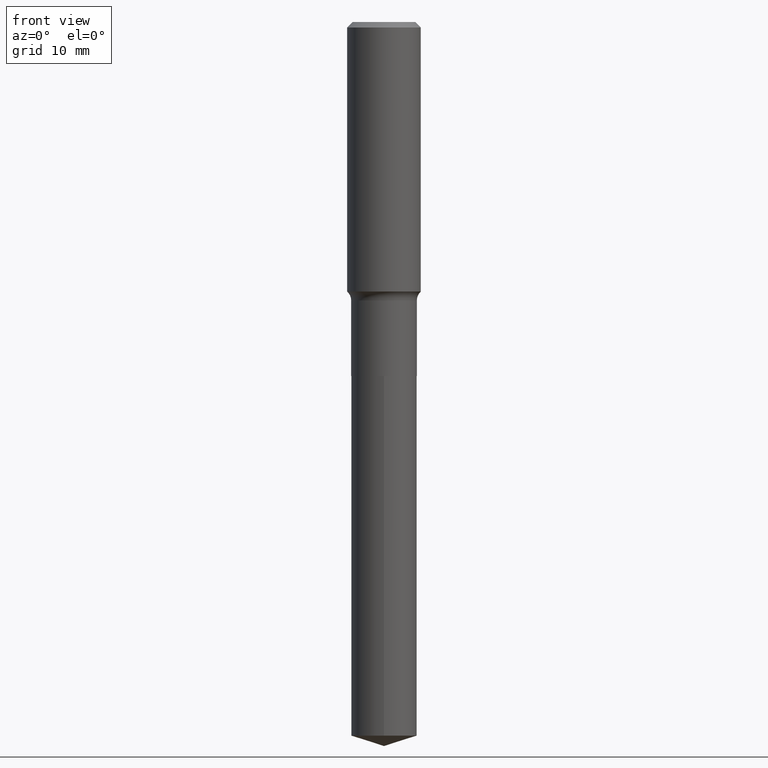
[diagram: clean part render]
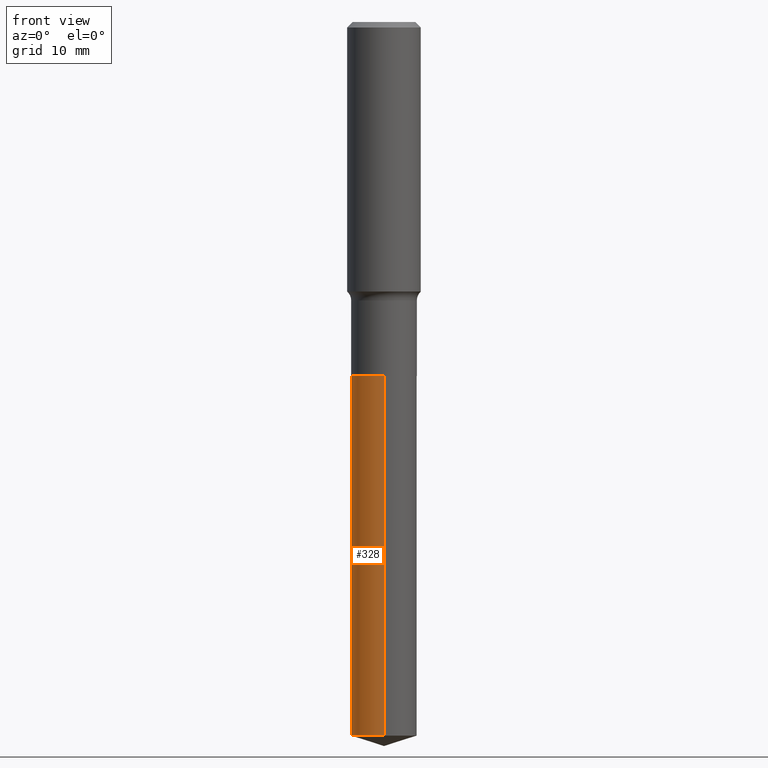
[diagram: same view with one face highlighted and labeled with its STEP entity id]
A machine part, front view. The second image highlights one B-rep face of the part: STEP entity #328.
In plain terms, the highlighted cylindrical surface (edge-blend (fillet) strip) has radius 5.3505 mm, axis along (-0, 0, 1).
Its self-contained STEP definition (entity closure, byte-faithful):
#15 = CARTESIAN_POINT ( 'NONE',  ( 1.496758272878763482E-15, 0.2106499999999920936, -2.271700000000000053 ) ) ;
#39 = ORIENTED_EDGE ( 'NONE', *, *, #441, .F. ) ;
#40 = DIRECTION ( 'NONE',  ( -6.982962677686265922E-15, -1.000000000000000000, 3.890597664843479129E-15 ) ) ;
#47 = LINE ( 'NONE', #230, #479 ) ;
#48 = CARTESIAN_POINT ( 'NONE',  ( -1.470961088054556343E-15, -0.2106500000000079420, -2.271699999999998720 ) ) ;
#52 = AXIS2_PLACEMENT_3D ( 'NONE', #446, #383, #40 ) ;
#53 = DIRECTION ( 'NONE',  ( -2.445499716987026041E-29, 3.491437072815506423E-15, 1.000000000000000000 ) ) ;
#56 = ORIENTED_EDGE ( 'NONE', *, *, #385, .T. ) ;
#106 = DIRECTION ( 'NONE',  ( -6.982962677686265922E-15, -1.000000000000000000, 2.593731776562319814E-15 ) ) ;
#122 = LINE ( 'NONE', #240, #138 ) ;
#129 = ORIENTED_EDGE ( 'NONE', *, *, #223, .T. ) ;
#131 = VERTEX_POINT ( 'NONE', #357 ) ;
#135 = AXIS2_PLACEMENT_3D ( 'NONE', #251, #147, #106 ) ;
#138 = VECTOR ( 'NONE', #154, 39.37007874015748143 ) ;
#143 = CIRCLE ( 'NONE', #135, 0.2106500000000000039 ) ;
#147 = DIRECTION ( 'NONE',  ( -2.445499716987026041E-29, 3.491437072815506423E-15, 1.000000000000000000 ) ) ;
#154 = DIRECTION ( 'NONE',  ( -2.445499716987026041E-29, 3.491437072815506423E-15, 1.000000000000000000 ) ) ;
#160 = ORIENTED_EDGE ( 'NONE', *, *, #185, .F. ) ;
#163 = CARTESIAN_POINT ( 'NONE',  ( 1.496758272878762693E-15, 0.2106499999999839612, -4.579282310122643196 ) ) ;
#185 = EDGE_CURVE ( 'NONE', #487, #485, #409, .T. ) ;
#193 = AXIS2_PLACEMENT_3D ( 'NONE', #339, #416, #263 ) ;
#223 = EDGE_CURVE ( 'NONE', #131, #485, #122, .T. ) ;
#230 = CARTESIAN_POINT ( 'NONE',  ( 1.496758272878706487E-15, 0.2106499999999920936, -2.271700000000000053 ) ) ;
#240 = CARTESIAN_POINT ( 'NONE',  ( -1.470961088054556343E-15, -0.2106500000000079420, -2.271699999999998720 ) ) ;
#251 = CARTESIAN_POINT ( 'NONE',  ( 1.119856337333996399E-28, -1.598837658358541571E-14, -4.579282310122642308 ) ) ;
#263 = DIRECTION ( 'NONE',  ( -6.982962677686265922E-15, -1.000000000000000000, 3.890597664843479129E-15 ) ) ;
#308 = EDGE_LOOP ( 'NONE', ( #39, #56, #129, #160 ) ) ;
#328 = ADVANCED_FACE ( 'NONE', ( #337 ), #333, .T. ) ;
#333 = CYLINDRICAL_SURFACE ( 'NONE', #52, 0.2106500000000000039 ) ;
#337 = FACE_OUTER_BOUND ( 'NONE', #308, .T. ) ;
#339 = CARTESIAN_POINT ( 'NONE',  ( 5.555371487010773044E-29, -7.931598157449970914E-15, -2.271699999999999608 ) ) ;
#357 = CARTESIAN_POINT ( 'NONE',  ( -1.470961088054499348E-15, -0.2106500000000159634, -4.579282310122641420 ) ) ;
#383 = DIRECTION ( 'NONE',  ( -2.445499716987026041E-29, 3.491437072815506423E-15, 1.000000000000000000 ) ) ;
#385 = EDGE_CURVE ( 'NONE', #457, #131, #143, .T. ) ;
#409 = CIRCLE ( 'NONE', #193, 0.2106500000000000039 ) ;
#416 = DIRECTION ( 'NONE',  ( -2.445499716987026041E-29, 3.491437072815506423E-15, 1.000000000000000000 ) ) ;
#441 = EDGE_CURVE ( 'NONE', #457, #487, #47, .T. ) ;
#446 = CARTESIAN_POINT ( 'NONE',  ( 5.555371487010773044E-29, -7.931598157449970914E-15, -2.271699999999999608 ) ) ;
#457 = VERTEX_POINT ( 'NONE', #163 ) ;
#479 = VECTOR ( 'NONE', #53, 39.37007874015748143 ) ;
#485 = VERTEX_POINT ( 'NONE', #48 ) ;
#487 = VERTEX_POINT ( 'NONE', #15 ) ;